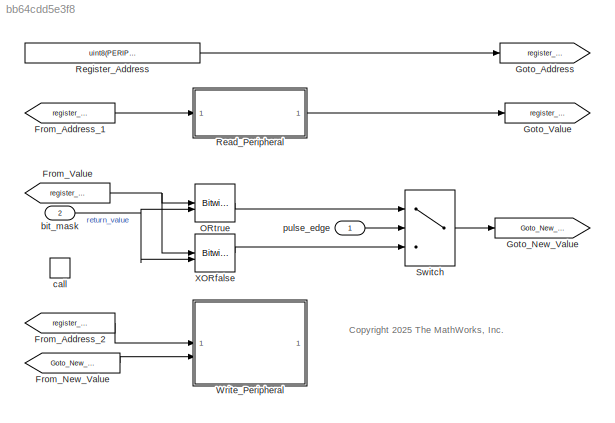
MODEL slx_bb64cdd5e3f8
KIND model
CONFIG AbsTol = auto
CONFIG EnableMultiTasking = off
CONFIG FixedStep = auto
CONFIG MaxStep = auto
CONFIG MinStep = auto
CONFIG RelTol = 1e-3
CONFIG SampleTimeConstraint = STIndependent
CONFIG SolverName = FixedStepAuto
CONFIG StartTime = 0.0
CONFIG StopTime = Inf
BLOCK [From] From_Address_1
  GotoTag = register_address
BLOCK [From] From_Address_2
  GotoTag = register_address
BLOCK [From] From_New_Value
  GotoTag = Goto_New_Value
BLOCK [From] From_Value
  GotoTag = register_value
  NameLocation = top
BLOCK [Goto] Goto_Address
  GotoTag = register_address
BLOCK [Goto] Goto_New_Value
  GotoTag = Goto_New_Value
BLOCK [Goto] Goto_Value
  GotoTag = register_value
BLOCK [Reference] ORtrue  REF=simulink/Logic and Bit
Operations/Bitwise
Operator
  NameLocation = top
  SourceBlock = simulink/Logic and Bit\nOperations/Bitwise\nOperator
  SourceType = Bitwise Operator
BLOCK [ModelReference] Read_Peripheral
  ModelNameDialog = ReadRegister
  ModelReferenceVersion = 11.4
BLOCK [Constant] Register_Address
  SampleTime = -1
  Value = uint8(PERIPHERALS_REGISTER)
BLOCK [Switch] Switch
  Criteria = u2 > Threshold
  InputSameDT = off
  SaturateOnIntegerOverflow = off
BLOCK [ModelReference] Write_Peripheral
  ModelNameDialog = WriteRegister
  ModelReferenceVersion = 11.4
BLOCK [Reference] XORfalse  REF=simulink/Logic and Bit
Operations/Bitwise
Operator
  SourceBlock = simulink/Logic and Bit\nOperations/Bitwise\nOperator
  SourceType = Bitwise Operator
BLOCK [Inport] bit_mask
  OutDataTypeStr = uint8
  Port = 2
  PortDimensions = 1
  SamplingMode = Sample based
  SignalType = real
BLOCK [TriggerPort] call
  PortDimensions = 1
  StatesWhenEnabling = held
  TriggerSignalSampleTime = [0.001,0]
  TriggerType = function-call
  VariantControl = Variant
BLOCK [Inport] pulse_edge
  NameLocation = left
  OutDataTypeStr = boolean
  PortDimensions = 1
  SamplingMode = Sample based
  SignalType = real
ANNOTATION (root): <copyright redacted>
LINE From_Address_1:1 -> Read_Peripheral:1
LINE From_Address_2:1 -> Write_Peripheral:1
LINE From_New_Value:1 -> Write_Peripheral:2
NET From_Value:1 -> ORtrue:1, XORfalse:1
LINE ORtrue:1 -> Switch:1
LINE Read_Peripheral:1 -> Goto_Value:1
LINE Register_Address:1 -> Goto_Address:1
LINE Switch:1 -> Goto_New_Value:1
LINE XORfalse:1 -> Switch:3
NET bit_mask:1 -> ORtrue:2, XORfalse:2
LINE pulse_edge:1 -> Switch:2
note: NET lines group one-source signal fan-out (src -> all destinations, sorted); 1:1 wires keep LINE
